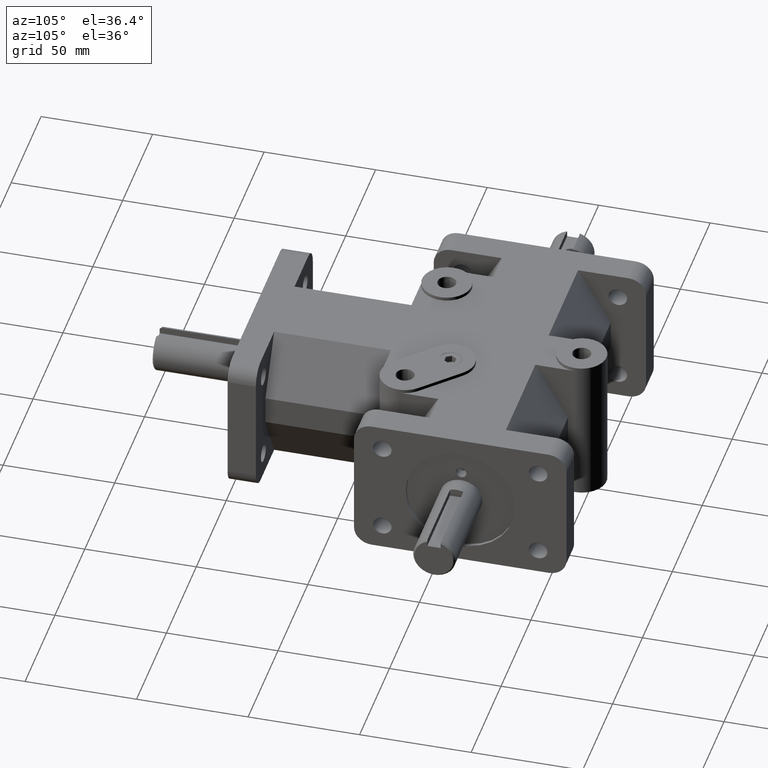
[diagram: clean part render]
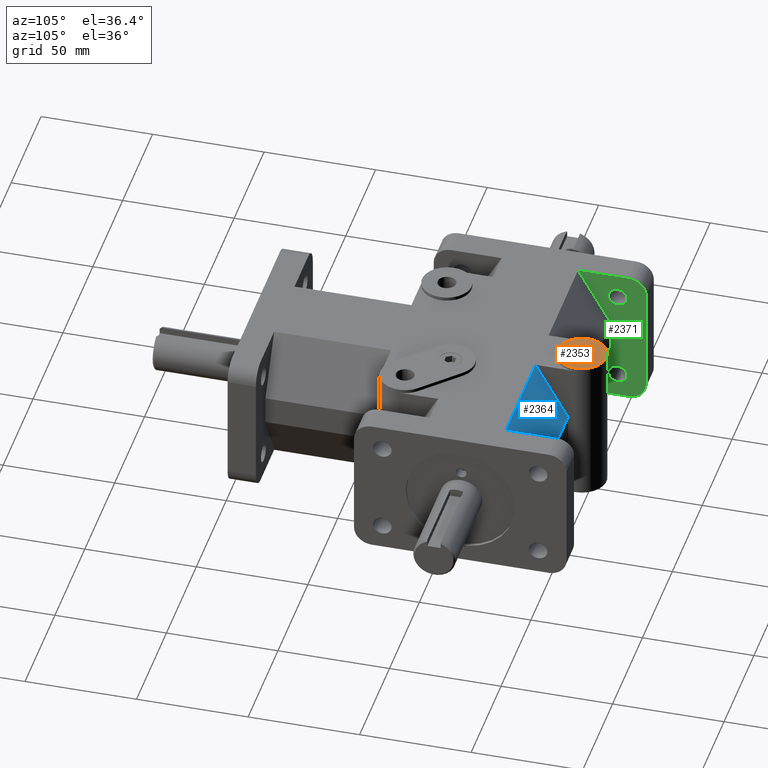
[diagram: same view with three faces highlighted in distinct colors, each labeled with its STEP entity id]
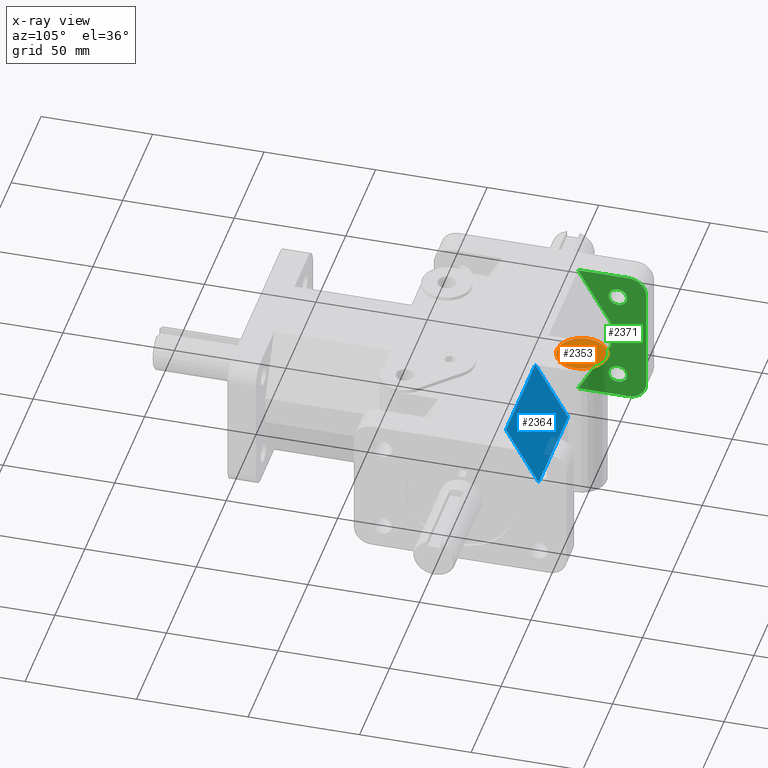
[diagram: x-ray of the same camera — body ghosted, the three highlighted faces saturated]
A machine part, auxiliary view with three faces highlighted in distinct colors.
The next image is the same camera in x-ray (body ghosted, the three faces saturated) — at least one of them is partly hidden behind the body in this view.
Their STEP definitions:

[orange] entity #2353 — the highlighted planar face has unit normal (0, 0, 1).
#41=FACE_BOUND('',#390,.T.);
#107=PLANE('',#2600);
#234=FACE_OUTER_BOUND('',#389,.T.);
#389=EDGE_LOOP('',(#2007));
#390=EDGE_LOOP('',(#2008));
#994=CIRCLE('',#2586,4.15925);
#1000=CIRCLE('',#2601,11.1125);
#1195=VERTEX_POINT('',#3885);
#1203=VERTEX_POINT('',#3918);
#1486=EDGE_CURVE('',#1195,#1195,#994,.T.);
#1501=EDGE_CURVE('',#1203,#1203,#1000,.T.);
#2007=ORIENTED_EDGE('',*,*,#1501,.F.);
#2008=ORIENTED_EDGE('',*,*,#1486,.T.);
#2353=ADVANCED_FACE('',(#234,#41),#107,.T.);
#2586=AXIS2_PLACEMENT_3D('',#3887,#3156,#3157);
#2600=AXIS2_PLACEMENT_3D('',#3917,#3193,#3194);
#2601=AXIS2_PLACEMENT_3D('',#3919,#3195,#3196);
#3156=DIRECTION('center_axis',(0.,0.,-1.));
#3157=DIRECTION('ref_axis',(1.,0.,0.));
#3193=DIRECTION('center_axis',(0.,0.,1.));
#3194=DIRECTION('ref_axis',(-1.,0.,0.));
#3195=DIRECTION('center_axis',(0.,0.,-1.));
#3196=DIRECTION('ref_axis',(1.,0.,0.));
#3885=CARTESIAN_POINT('',(-4.15925,146.05,33.3375));
#3887=CARTESIAN_POINT('Origin',(0.,146.05,33.3375));
#3917=CARTESIAN_POINT('Origin',(1.01022727272727,146.05,33.3375));
#3918=CARTESIAN_POINT('',(-11.1125,146.05,33.3375));
#3919=CARTESIAN_POINT('Origin',(0.,146.05,33.3375));

[blue] entity #2364 — the highlighted planar face has unit normal (0, 0.866, 0.5).
#118=PLANE('',#2613);
#245=FACE_OUTER_BOUND('',#402,.T.);
#402=EDGE_LOOP('',(#2047,#2048,#2049,#2050));
#521=LINE('',#3638,#743);
#557=LINE('',#3728,#779);
#642=LINE('',#3969,#864);
#643=LINE('',#3970,#865);
#743=VECTOR('',#2924,1.);
#779=VECTOR('',#2998,1.);
#864=VECTOR('',#3243,1.);
#865=VECTOR('',#3244,1.);
#1106=VERTEX_POINT('',#3635);
#1107=VERTEX_POINT('',#3637);
#1142=VERTEX_POINT('',#3727);
#1218=VERTEX_POINT('',#3968);
#1355=EDGE_CURVE('',#1107,#1106,#521,.F.);
#1405=EDGE_CURVE('',#1142,#1107,#557,.T.);
#1525=EDGE_CURVE('',#1218,#1142,#642,.F.);
#1526=EDGE_CURVE('',#1106,#1218,#643,.T.);
#2047=ORIENTED_EDGE('',*,*,#1525,.T.);
#2048=ORIENTED_EDGE('',*,*,#1405,.T.);
#2049=ORIENTED_EDGE('',*,*,#1355,.T.);
#2050=ORIENTED_EDGE('',*,*,#1526,.T.);
#2364=ADVANCED_FACE('',(#245),#118,.T.);
#2613=AXIS2_PLACEMENT_3D('',#3967,#3241,#3242);
#2924=DIRECTION('',(0.,-0.499999825156179,0.866025504730542));
#2998=DIRECTION('',(1.,0.,0.));
#3241=DIRECTION('center_axis',(0.,0.866025504730542,0.499999825156179));
#3242=DIRECTION('ref_axis',(0.,0.499999825156179,-0.866025504730542));
#3243=DIRECTION('',(0.,0.499999825156179,-0.866025504730542));
#3244=DIRECTION('',(-1.,0.,0.));
#3635=CARTESIAN_POINT('',(60.325,142.875,6.35));
#3637=CARTESIAN_POINT('',(60.325,128.21031,31.75));
#3638=CARTESIAN_POINT('',(60.325,142.568016120181,6.88171192486159));
#3727=CARTESIAN_POINT('',(11.1125,128.21031,31.75));
#3728=CARTESIAN_POINT('',(30.1625,128.21031,31.75));
#3967=CARTESIAN_POINT('Origin',(30.1625,135.542655,19.05));
#3968=CARTESIAN_POINT('',(11.1125,142.875,6.35));
#3969=CARTESIAN_POINT('',(11.1125,140.583642508004,10.318749444871));
#3970=CARTESIAN_POINT('',(30.1625,142.875,6.35));

[green] entity #2371 — the highlighted planar face has unit normal (1, 0, 0).
#43=FACE_BOUND('',#410,.T.);
#44=FACE_BOUND('',#411,.T.);
#124=PLANE('',#2620);
#252=FACE_OUTER_BOUND('',#409,.T.);
#409=EDGE_LOOP('',(#2085,#2086,#2087,#2088,#2089,#2090,#2091,#2092));
#410=EDGE_LOOP('',(#2093));
#411=EDGE_LOOP('',(#2094));
#552=LINE('',#3716,#774);
#561=LINE('',#3737,#783);
#645=LINE('',#3975,#867);
#647=LINE('',#3979,#869);
#656=LINE('',#3993,#878);
#657=LINE('',#3995,#879);
#774=VECTOR('',#2989,1.);
#783=VECTOR('',#3004,1.);
#867=VECTOR('',#3248,1.);
#869=VECTOR('',#3252,1.);
#878=VECTOR('',#3269,1.);
#879=VECTOR('',#3272,1.);
#950=CIRCLE('',#2510,7.874);
#952=CIRCLE('',#2513,7.874);
#986=CIRCLE('',#2574,4.15925);
#988=CIRCLE('',#2577,4.15925);
#1098=VERTEX_POINT('',#3616);
#1099=VERTEX_POINT('',#3618);
#1102=VERTEX_POINT('',#3625);
#1103=VERTEX_POINT('',#3627);
#1137=VERTEX_POINT('',#3715);
#1146=VERTEX_POINT('',#3735);
#1187=VERTEX_POINT('',#3861);
#1189=VERTEX_POINT('',#3867);
#1220=VERTEX_POINT('',#3974);
#1221=VERTEX_POINT('',#3978);
#1346=EDGE_CURVE('',#1098,#1099,#950,.T.);
#1350=EDGE_CURVE('',#1102,#1103,#952,.T.);
#1399=EDGE_CURVE('',#1137,#1099,#552,.T.);
#1410=EDGE_CURVE('',#1102,#1146,#561,.T.);
#1474=EDGE_CURVE('',#1187,#1187,#986,.T.);
#1477=EDGE_CURVE('',#1189,#1189,#988,.T.);
#1528=EDGE_CURVE('',#1137,#1220,#645,.F.);
#1530=EDGE_CURVE('',#1221,#1146,#647,.F.);
#1539=EDGE_CURVE('',#1221,#1220,#656,.T.);
#1540=EDGE_CURVE('',#1103,#1098,#657,.T.);
#2085=ORIENTED_EDGE('',*,*,#1346,.F.);
#2086=ORIENTED_EDGE('',*,*,#1540,.F.);
#2087=ORIENTED_EDGE('',*,*,#1350,.F.);
#2088=ORIENTED_EDGE('',*,*,#1410,.T.);
#2089=ORIENTED_EDGE('',*,*,#1530,.F.);
#2090=ORIENTED_EDGE('',*,*,#1539,.T.);
#2091=ORIENTED_EDGE('',*,*,#1528,.F.);
#2092=ORIENTED_EDGE('',*,*,#1399,.T.);
#2093=ORIENTED_EDGE('',*,*,#1474,.T.);
#2094=ORIENTED_EDGE('',*,*,#1477,.T.);
#2371=ADVANCED_FACE('',(#252,#43,#44),#124,.T.);
#2510=AXIS2_PLACEMENT_3D('',#3619,#2908,#2909);
#2513=AXIS2_PLACEMENT_3D('',#3628,#2916,#2917);
#2574=AXIS2_PLACEMENT_3D('',#3863,#3128,#3129);
#2577=AXIS2_PLACEMENT_3D('',#3869,#3135,#3136);
#2620=AXIS2_PLACEMENT_3D('',#3994,#3270,#3271);
#2908=DIRECTION('center_axis',(-1.,0.,0.));
#2909=DIRECTION('ref_axis',(0.,0.707106781186548,-0.707106781186547));
#2916=DIRECTION('center_axis',(-1.,0.,0.));
#2917=DIRECTION('ref_axis',(0.,0.707106781186548,0.707106781186547));
#2989=DIRECTION('',(0.,1.,0.));
#3004=DIRECTION('',(0.,-1.,0.));
#3128=DIRECTION('center_axis',(-1.,0.,0.));
#3129=DIRECTION('ref_axis',(0.,-1.,0.));
#3135=DIRECTION('center_axis',(-1.,0.,0.));
#3136=DIRECTION('ref_axis',(0.,-1.,0.));
#3248=DIRECTION('',(0.,-0.499999825156179,-0.866025504730542));
#3252=DIRECTION('',(0.,0.499999825156179,-0.866025504730542));
#3269=DIRECTION('',(0.,0.,-1.));
#3270=DIRECTION('center_axis',(1.,0.,0.));
#3271=DIRECTION('ref_axis',(0.,-1.,0.));
#3272=DIRECTION('',(0.,0.,-1.));
#3616=CARTESIAN_POINT('',(-60.325,158.75,-23.876));
#3618=CARTESIAN_POINT('',(-60.325,150.876,-31.75));
#3619=CARTESIAN_POINT('Origin',(-60.325,150.876,-23.876));
#3625=CARTESIAN_POINT('',(-60.325,150.876,31.75));
#3627=CARTESIAN_POINT('',(-60.325,158.75,23.876));
#3628=CARTESIAN_POINT('Origin',(-60.325,150.876,23.876));
#3715=CARTESIAN_POINT('',(-60.325,128.21031,-31.75));
#3716=CARTESIAN_POINT('',(-60.325,142.875,-31.75));
#3735=CARTESIAN_POINT('',(-60.325,128.21031,31.75));
#3737=CARTESIAN_POINT('',(-60.325,112.837452872698,31.75));
#3861=CARTESIAN_POINT('',(-60.325,150.20925,20.6375));
#3863=CARTESIAN_POINT('Origin',(-60.325,146.05,20.6375));
#3867=CARTESIAN_POINT('',(-60.325,150.20925,-20.6375));
#3869=CARTESIAN_POINT('Origin',(-60.325,146.05,-20.6375));
#3974=CARTESIAN_POINT('',(-60.325,142.875,-6.35));
#3975=CARTESIAN_POINT('',(-60.325,140.583642508004,-10.318749444871));
#3978=CARTESIAN_POINT('',(-60.325,142.875,6.35));
#3979=CARTESIAN_POINT('',(-60.325,140.583642508004,10.318749444871));
#3993=CARTESIAN_POINT('',(-60.325,142.875,0.));
#3994=CARTESIAN_POINT('Origin',(-60.325,142.875,0.));
#3995=CARTESIAN_POINT('',(-60.325,158.75,0.));